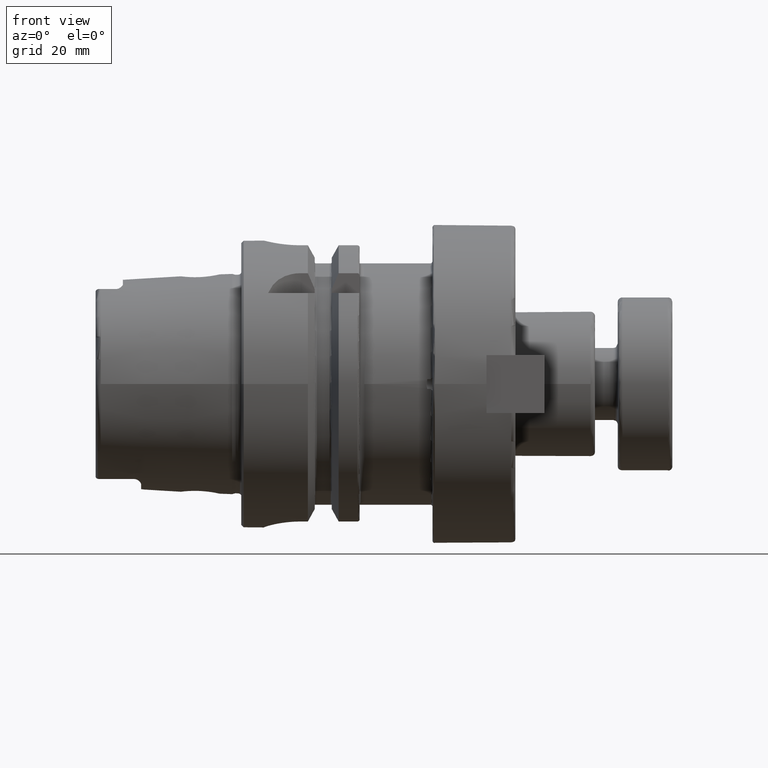
[diagram: clean part render]
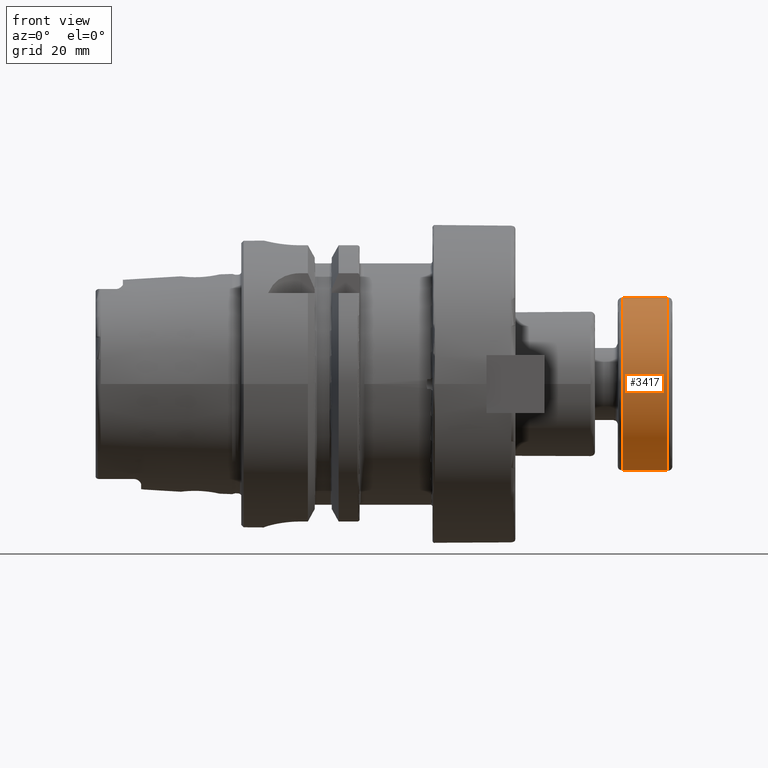
[diagram: same view with one face highlighted and labeled with its STEP entity id]
A machine part, front view. The second image highlights one B-rep face of the part: STEP entity #3417.
In plain terms, the highlighted cylindrical surface (bore or boss wall) has radius 19.05 mm, axis along (-1, 0, -0).
Its self-contained STEP definition (entity closure, byte-faithful):
#191=CYLINDRICAL_SURFACE('',#3911,19.05);
#368=LINE('',#7016,#568);
#568=VECTOR('',#4855,19.05);
#846=FACE_OUTER_BOUND('',#1060,.T.);
#1060=EDGE_LOOP('',(#3099,#3100,#3101,#3102,#3103,#3104));
#1274=CIRCLE('',#3909,19.05);
#1275=CIRCLE('',#3910,19.05);
#1276=CIRCLE('',#3912,19.05);
#1277=CIRCLE('',#3913,19.05);
#1661=VERTEX_POINT('',#7009);
#1662=VERTEX_POINT('',#7011);
#1663=VERTEX_POINT('',#7015);
#1664=VERTEX_POINT('',#7017);
#2149=EDGE_CURVE('',#1661,#1662,#1274,.T.);
#2150=EDGE_CURVE('',#1662,#1661,#1275,.T.);
#2151=EDGE_CURVE('',#1662,#1663,#368,.T.);
#2152=EDGE_CURVE('',#1664,#1663,#1276,.T.);
#2153=EDGE_CURVE('',#1663,#1664,#1277,.T.);
#3099=ORIENTED_EDGE('',*,*,#2150,.F.);
#3100=ORIENTED_EDGE('',*,*,#2151,.T.);
#3101=ORIENTED_EDGE('',*,*,#2152,.F.);
#3102=ORIENTED_EDGE('',*,*,#2153,.F.);
#3103=ORIENTED_EDGE('',*,*,#2151,.F.);
#3104=ORIENTED_EDGE('',*,*,#2149,.F.);
#3417=ADVANCED_FACE('',(#846),#191,.T.);
#3909=AXIS2_PLACEMENT_3D('',#7012,#4849,#4850);
#3910=AXIS2_PLACEMENT_3D('',#7013,#4851,#4852);
#3911=AXIS2_PLACEMENT_3D('',#7014,#4853,#4854);
#3912=AXIS2_PLACEMENT_3D('',#7018,#4856,#4857);
#3913=AXIS2_PLACEMENT_3D('',#7019,#4858,#4859);
#4849=DIRECTION('center_axis',(1.,0.,0.));
#4850=DIRECTION('ref_axis',(0.,-1.,1.83697019872103E-16));
#4851=DIRECTION('center_axis',(1.,0.,0.));
#4852=DIRECTION('ref_axis',(0.,-1.,1.83697019872103E-16));
#4853=DIRECTION('center_axis',(1.,0.,0.));
#4854=DIRECTION('ref_axis',(0.,1.,0.));
#4855=DIRECTION('',(-1.,0.,0.));
#4856=DIRECTION('center_axis',(-1.,0.,0.));
#4857=DIRECTION('ref_axis',(0.,-1.,1.83697019872103E-16));
#4858=DIRECTION('center_axis',(-1.,0.,0.));
#4859=DIRECTION('ref_axis',(0.,-1.,1.83697019872103E-16));
#7009=CARTESIAN_POINT('',(11.,-2.33295215237571E-15,19.05));
#7011=CARTESIAN_POINT('',(11.,-19.05,-2.33295215237571E-15));
#7012=CARTESIAN_POINT('Origin',(11.,0.,0.));
#7013=CARTESIAN_POINT('Origin',(11.,0.,0.));
#7014=CARTESIAN_POINT('Origin',(6.,0.,0.));
#7015=CARTESIAN_POINT('',(1.,-19.05,-2.33295215237571E-15));
#7016=CARTESIAN_POINT('',(6.,-19.05,-2.33295215237571E-15));
#7017=CARTESIAN_POINT('',(1.,-2.33295215237571E-15,19.05));
#7018=CARTESIAN_POINT('Origin',(1.,0.,0.));
#7019=CARTESIAN_POINT('Origin',(1.,0.,0.));